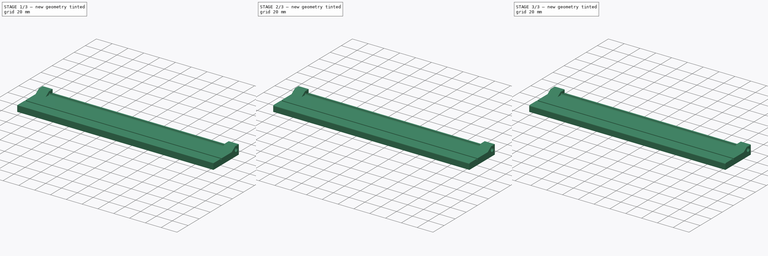
[diagram: build sequence overview — one tinted view per stage of 3, left to right]
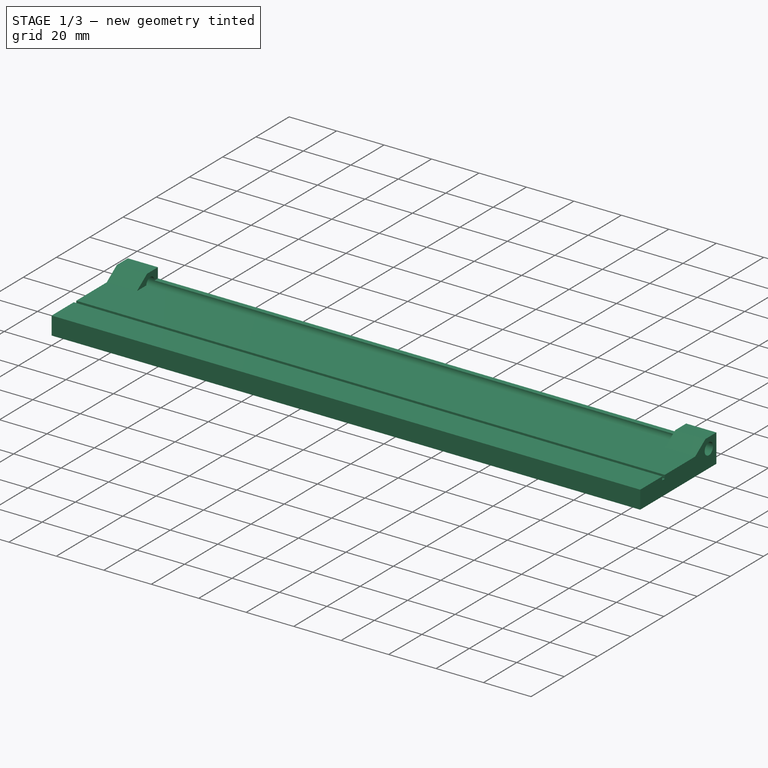
[diagram: stage 1 of 3 — iso view after this stage's code; geometry added in this stage tinted green]
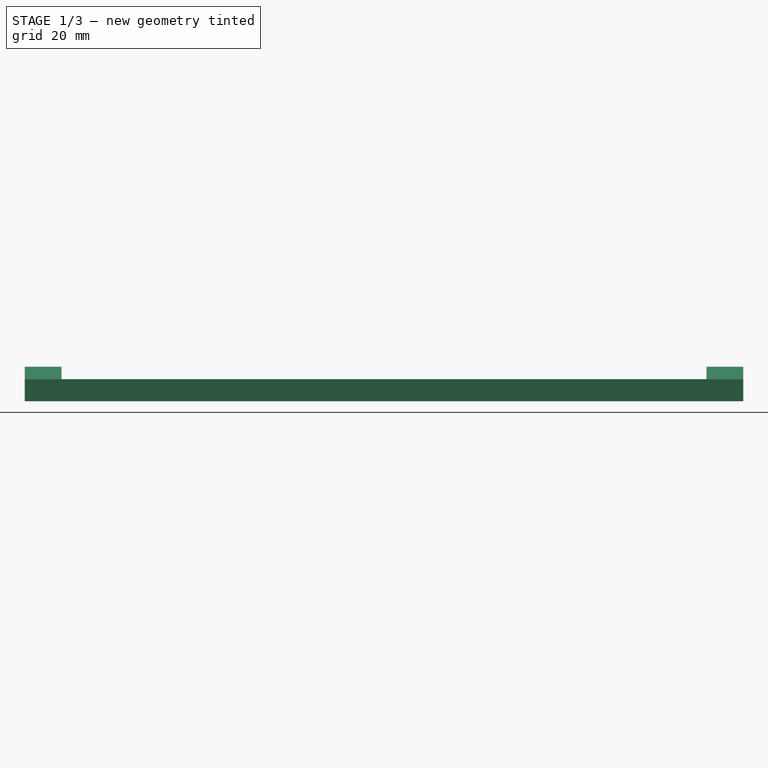
[diagram: stage 1 of 3 — front view after this stage's code; geometry added in this stage tinted green]
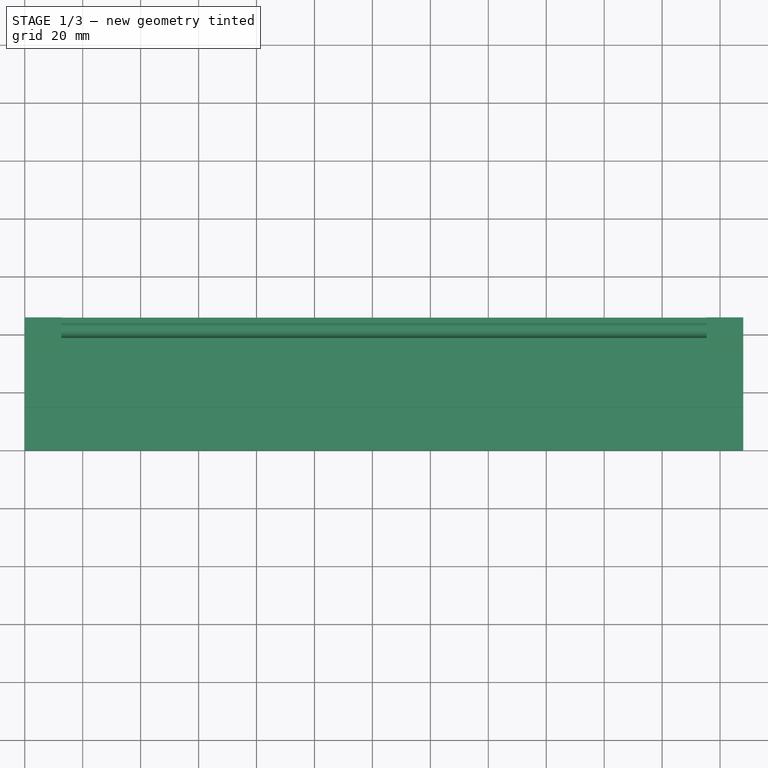
[diagram: stage 1 of 3 — top view after this stage's code; geometry added in this stage tinted green]
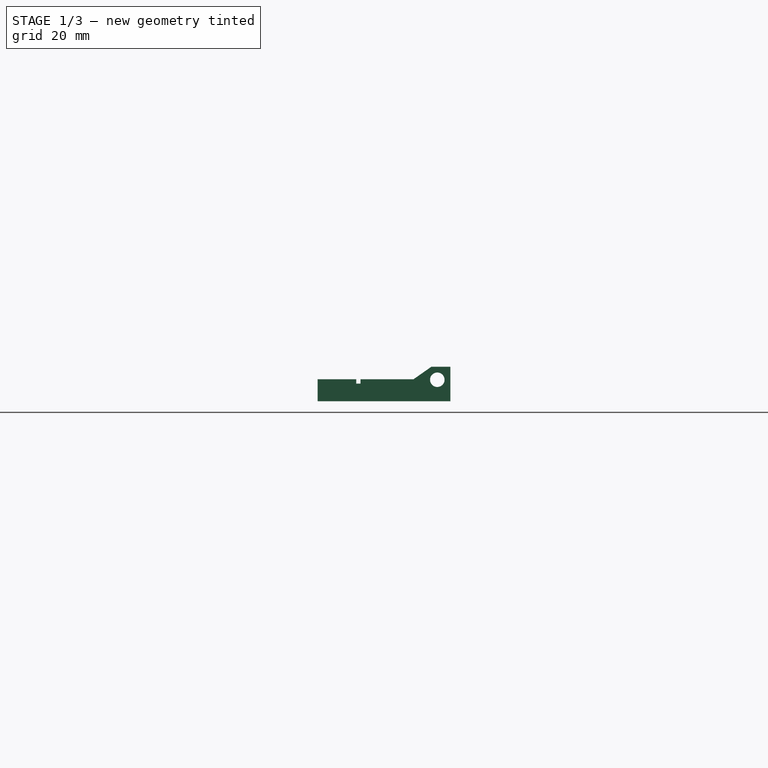
[diagram: stage 1 of 3 — right view after this stage's code; geometry added in this stage tinted green]
FCSTD DOCUMENT  (FreeCAD 0.19R24291 (Git))
Label: hinge
License: All rights reserved
LicenseURL: http://en.wikipedia.org/wiki/All_rights_reserved
objects: PartDesign::Fillet×3, Sketcher::SketchObject×2, PartDesign::Pad×1, PartDesign::Pocket×1, PartDesign::Body×1
note: 13 computed .brp shape members not serialized (recipe doc carries the construction recipe); baked Part::Feature solids carry a one-line shape summary decoded from their .brp

FEATURE [Sketcher::SketchObject] Sketch
  FullyConstrained = true
  MapMode = 5
  Placement = pos=(0,0,0) rot=(0.57735,0.57735,0.57735;2.0944rad)
  Support = -> [YZ_Plane]
  sketch-geometry (13):
    g0: LineSegment StartX=0 StartY=0 StartZ=0 EndX=45.8 EndY=0 EndZ=0
    g1: LineSegment StartX=45.8 StartY=0 StartZ=0 EndX=45.8 EndY=7.62 EndZ=0
    g2: LineSegment StartX=0 StartY=7.62 StartZ=0 EndX=0 EndY=0 EndZ=0
    g3: LineSegment StartX=0 StartY=7.62 StartZ=0 EndX=13.3 EndY=7.62 EndZ=0
    g4: LineSegment StartX=13.3 StartY=7.62 StartZ=0 EndX=13.3 EndY=6.12 EndZ=0
    g5: LineSegment StartX=13.3 StartY=6.12 StartZ=0 EndX=14.8 EndY=6.12 EndZ=0
    g6: GeomPoint X=14.8 Y=6.12 Z=0
    g7: LineSegment StartX=14.8 StartY=6.12 StartZ=0 EndX=14.8 EndY=7.62 EndZ=0
    g8: LineSegment StartX=45.8 StartY=7.62 StartZ=0 EndX=45.8 EndY=11.938 EndZ=0
    g9: LineSegment StartX=14.8 StartY=7.62 StartZ=0 EndX=33.1 EndY=7.62 EndZ=0
    g10: LineSegment StartX=33.1 StartY=7.62 StartZ=0 EndX=39.2667 EndY=11.938 EndZ=0
    g11: LineSegment StartX=45.8 StartY=11.938 StartZ=0 EndX=39.2667 EndY=11.938 EndZ=0
    g12: Circle CenterX=41.3 CenterY=7.438 CenterZ=0 NormalX=0 NormalY=0 NormalZ=1 AngleXU=0 Radius=2.5
  constraints (36):
    c: Coincident(g0,g1)
    c: Coincident(g2,g0)
    c: Horizontal(g0)
    c: Vertical(g1)
    c: Vertical(g2)
    c: Coincident(g0,g-1)
    c: DistanceX(g0,g0) = 45.8
    c: DistanceY(g1,g1) = 7.62
    c: Coincident(g3,g2)
    c: Horizontal(g3)
    c: DistanceX(g3,g3) = 13.3
    c: Coincident(g4,g3)
    c: Vertical(g4)
    c: Coincident(g5,g4)
    c: Horizontal(g5)
    c: DistanceX(g5,g5) = 1.5
    c: Coincident(g6,g5)
    c: DistanceY(g4,g4) = 1.5
    c: Equal(g1,g2)
    c: Coincident(g7,g5)
    c: Vertical(g7)
    c: Equal(g4,g7)
    c: Coincident(g8,g1)
    c: Vertical(g8)
    c: DistanceY(g8,g8) = 4.318
    c: Coincident(g9,g7)
    c: Horizontal(g9)
    c: DistanceX(g9,g9) = 18.3
    c: Coincident(g10,g9)
    c: Angle(g0,g10) = 0.610865
    c: Coincident(g11,g8)
    c: Coincident(g11,g10)
    c: Horizontal(g11)
    c: Radius(g12) = 2.5
    c: DistanceY(g12,g10) = 4.5
    c: DistanceX(g12,g8) = 4.5
FEATURE [PartDesign::Pad] Pad
  Direction = (1,1,1)
  Length = 248
  Length2 = 100
  Placement = pos=(0,0,0) rot=(0.57735,0.57735,0.57735;2.0944rad)
  Profile = -> Sketch
  Type = 0
FEATURE [Sketcher::SketchObject] Sketch001
  ExternalGeometry = -> [Pad]
  FullyConstrained = false
  MapMode = 5
  Placement = pos=(2.03e-14,45.8,-1.53e-14) rot=(0.57735,0.57735,0.57735;4.18879rad)
  Support = -> [Pad]
  sketch-geometry (4):
    g0: LineSegment StartX=7.67027 StartY=12.7 StartZ=0 EndX=12.3097 EndY=12.7 EndZ=0
    g1: LineSegment StartX=12.3097 StartY=12.7 StartZ=0 EndX=12.3097 EndY=235.3 EndZ=0
    g2: LineSegment StartX=12.3097 StartY=235.3 StartZ=0 EndX=7.67027 EndY=235.3 EndZ=0
    g3: LineSegment StartX=7.67027 StartY=235.3 StartZ=0 EndX=7.67027 EndY=12.7 EndZ=0
  constraints (10):
    c: Coincident(g0,g1)
    c: Coincident(g1,g2)
    c: Coincident(g2,g3)
    c: Coincident(g3,g0)
    c: Horizontal(g0)
    c: Horizontal(g2)
    c: Vertical(g1)
    c: Vertical(g3)
    c: DistanceY(g-1,g0) = 12.7
    c: DistanceY(g1,g-3) = 12.7
FEATURE [PartDesign::Pocket] Pocket
  BaseFeature = -> Pad
  Length = 25.4
  Length2 = 100
  Placement = pos=(0,0,0) rot=(0.57735,0.57735,0.57735;2.0944rad)
  Profile = -> Sketch001
  Type = 0
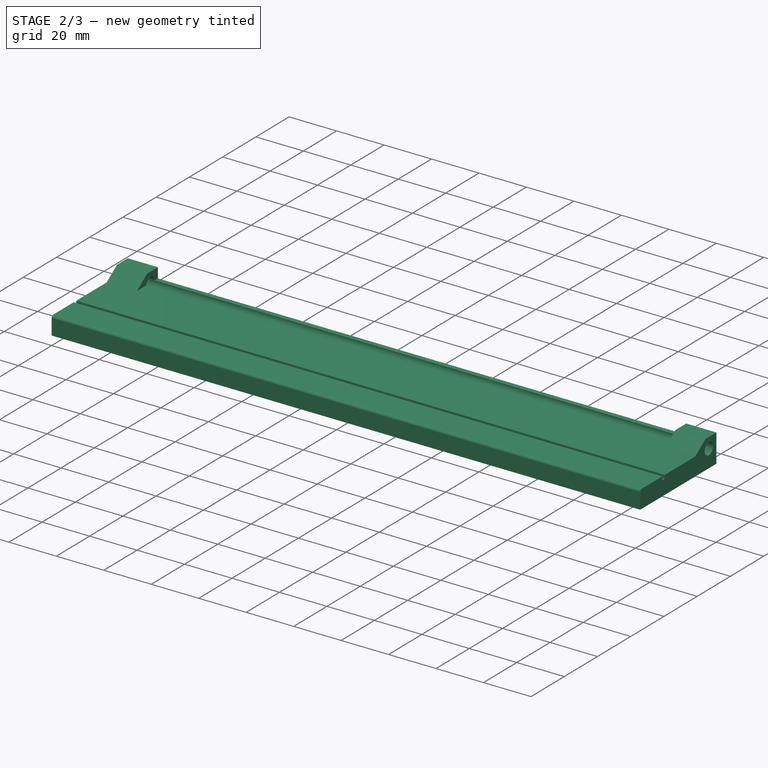
[diagram: stage 2 of 3 — iso view after this stage's code; geometry added in this stage tinted green]
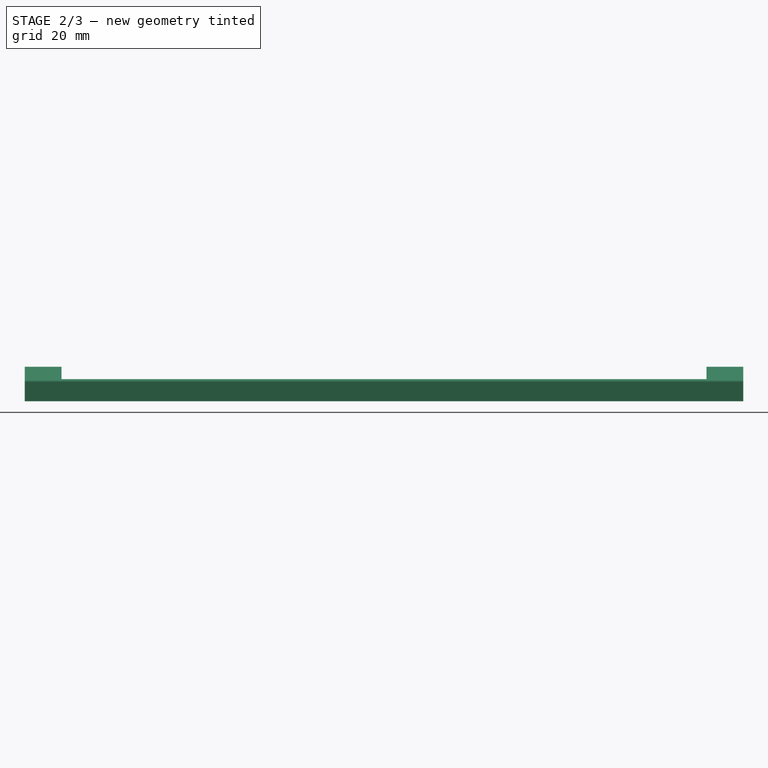
[diagram: stage 2 of 3 — front view after this stage's code; geometry added in this stage tinted green]
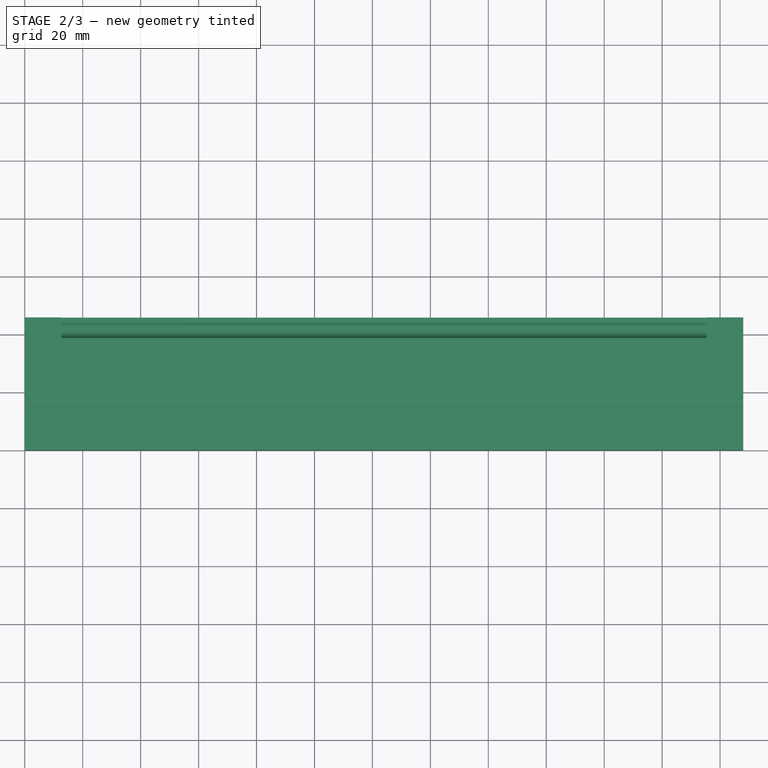
[diagram: stage 2 of 3 — top view after this stage's code; geometry added in this stage tinted green]
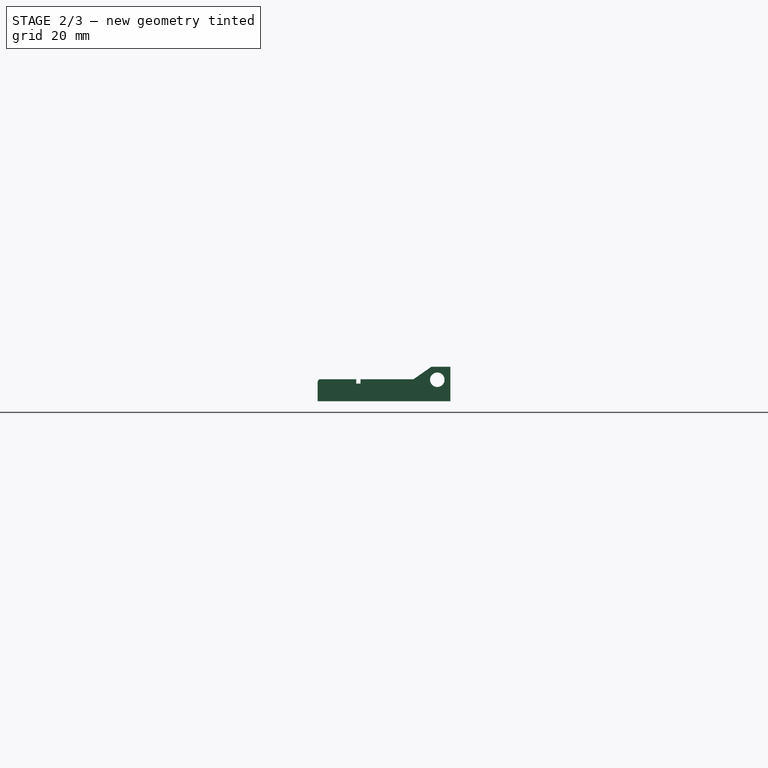
[diagram: stage 2 of 3 — right view after this stage's code; geometry added in this stage tinted green]
FEATURE [PartDesign::Fillet] Fillet
  Base = -> Pocket [Edge5]
  BaseFeature = -> Pocket
  Placement = pos=(0,0,0) rot=(0.57735,0.57735,0.57735;2.0944rad)
  Radius = 1
  SupportTransform = false
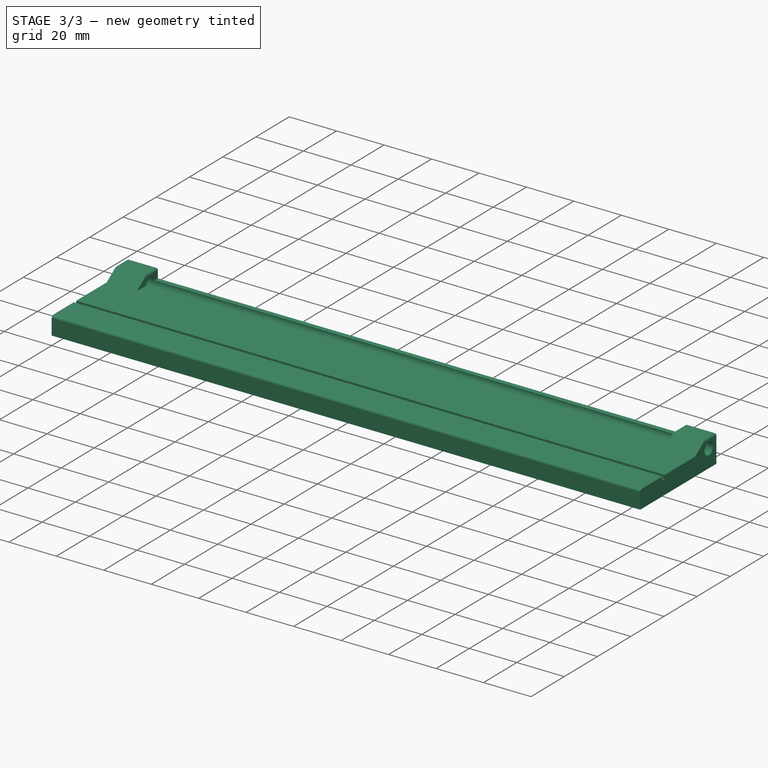
[diagram: stage 3 of 3 — iso view after this stage's code; geometry added in this stage tinted green]
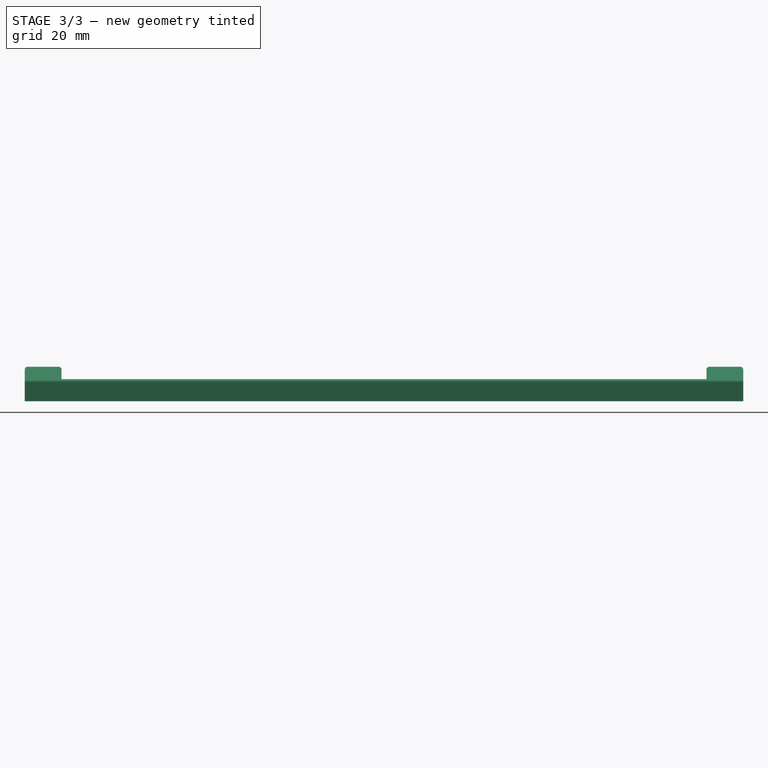
[diagram: stage 3 of 3 — front view after this stage's code; geometry added in this stage tinted green]
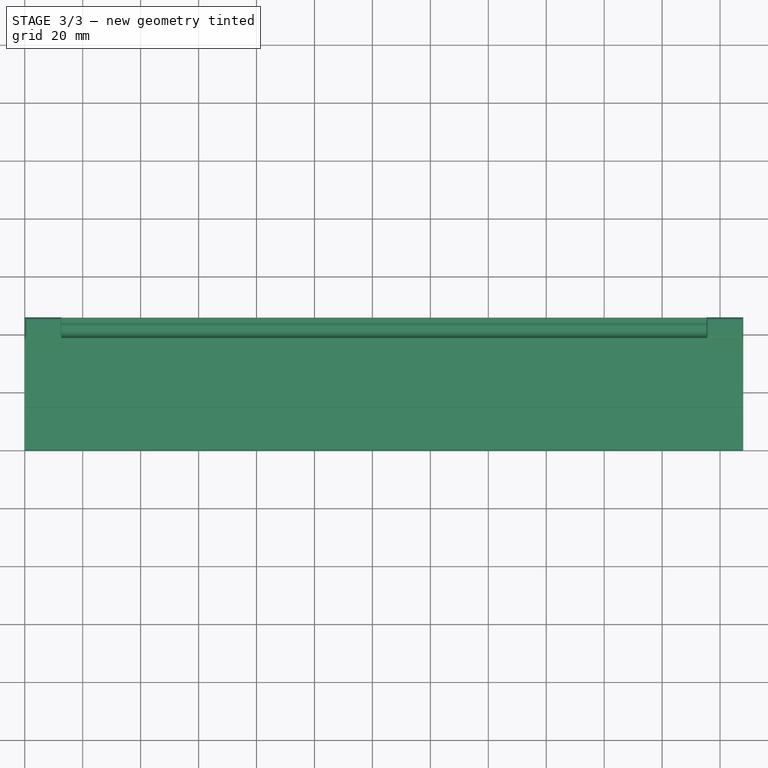
[diagram: stage 3 of 3 — top view after this stage's code; geometry added in this stage tinted green]
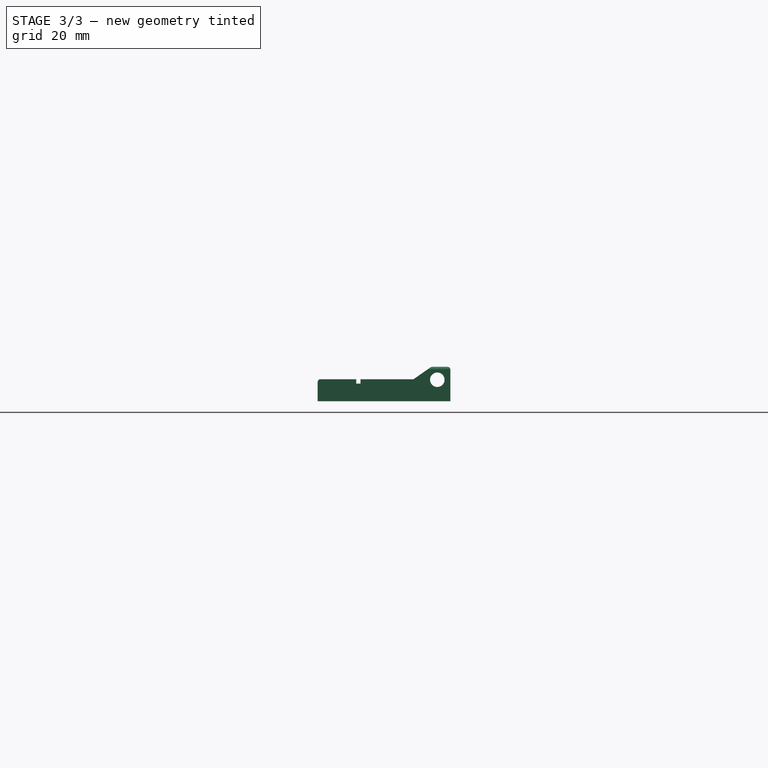
[diagram: stage 3 of 3 — right view after this stage's code; geometry added in this stage tinted green]
FEATURE [PartDesign::Fillet] Fillet001
  Base = -> Fillet [Face16]
  BaseFeature = -> Fillet
  Placement = pos=(0,0,0) rot=(0.57735,0.57735,0.57735;2.0944rad)
  Radius = 1
  SupportTransform = false
FEATURE [PartDesign::Fillet] Fillet002
  Base = -> Fillet001 [Face19]
  BaseFeature = -> Fillet001
  Placement = pos=(0,0,0) rot=(0.57735,0.57735,0.57735;2.0944rad)
  Radius = 1
  SupportTransform = false
FEATURE [PartDesign::Body] Body
  Group = -> [Sketch,Pad,Sketch001,Pocket,Fillet,Fillet001,Fillet002]
  Origin = -> Origin
  Tip = -> Fillet002
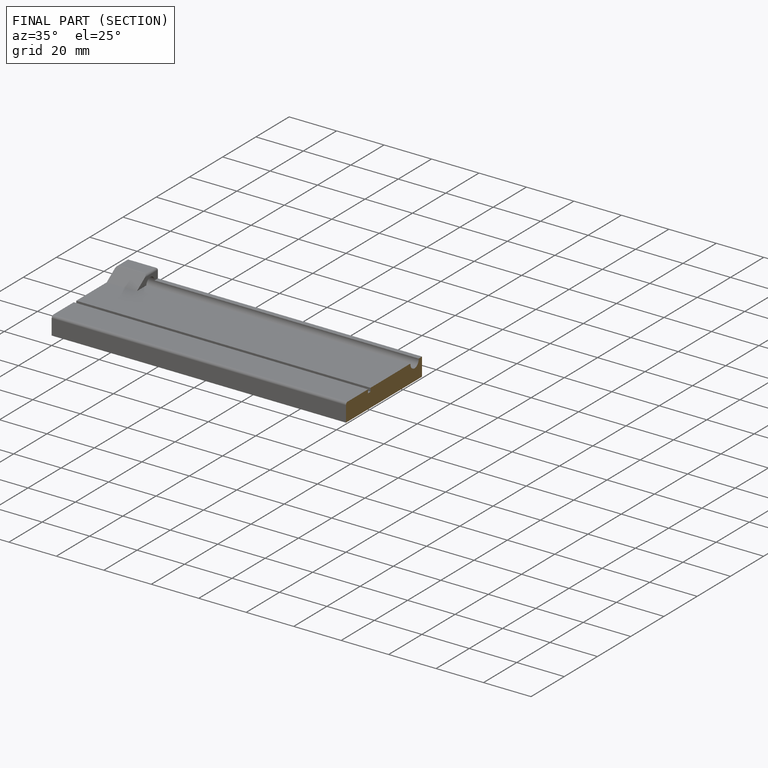
[diagram: finished part — half-section view (interior)]
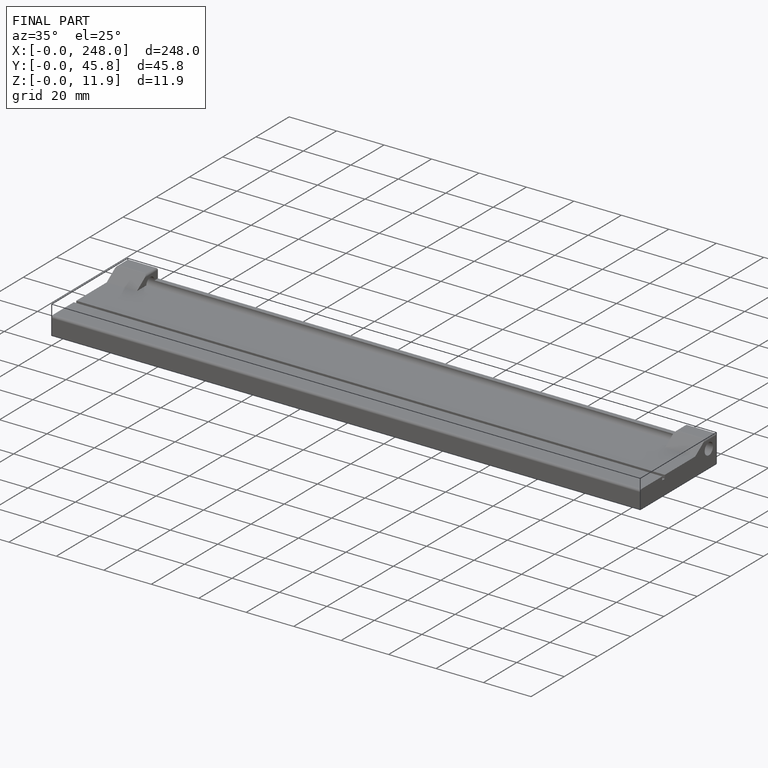
[diagram: finished part — iso view with bounding-box wireframe]
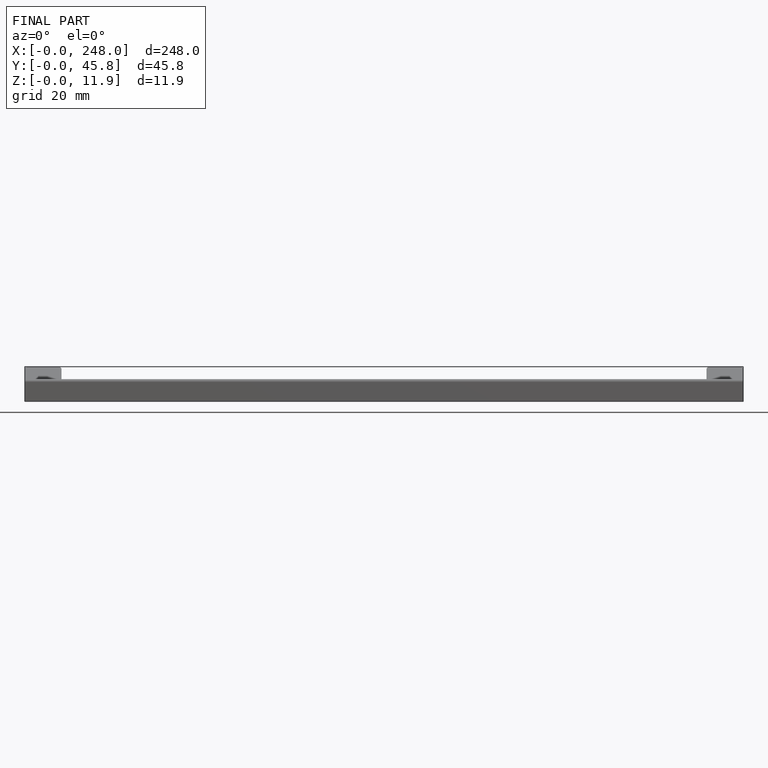
[diagram: finished part — front view with bounding-box wireframe]
